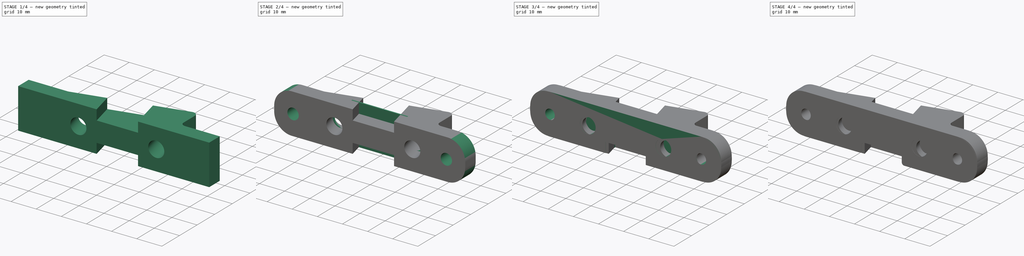
[diagram: build sequence overview — one tinted view per stage of 4, left to right]
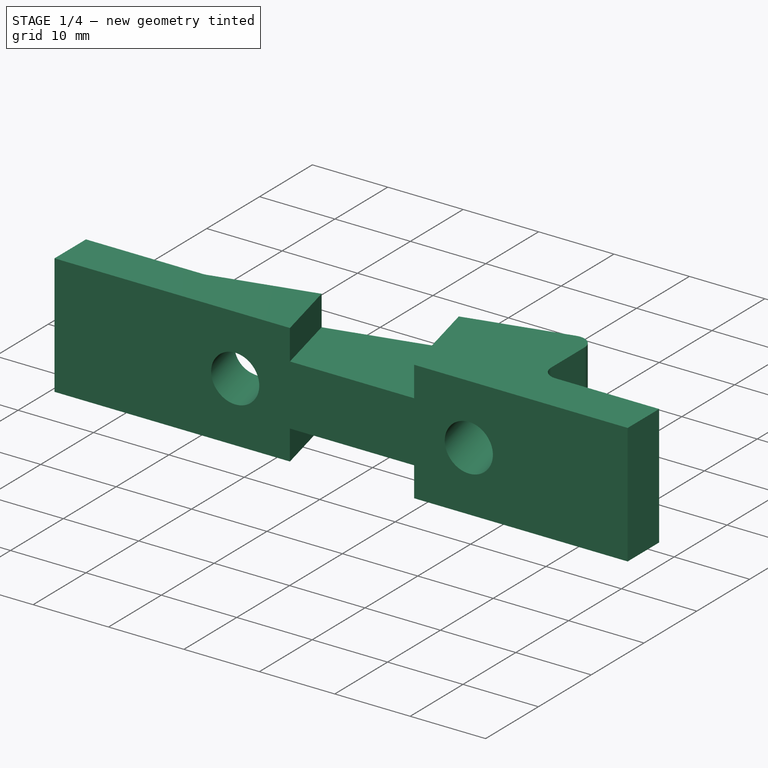
[diagram: stage 1 of 4 — iso view after this stage's code; geometry added in this stage tinted green]
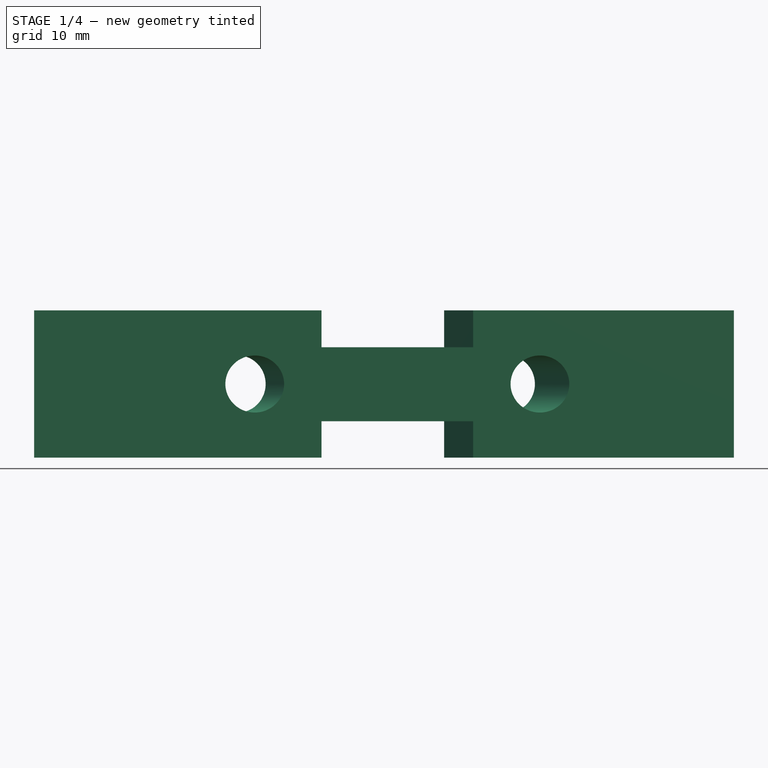
[diagram: stage 1 of 4 — front view after this stage's code; geometry added in this stage tinted green]
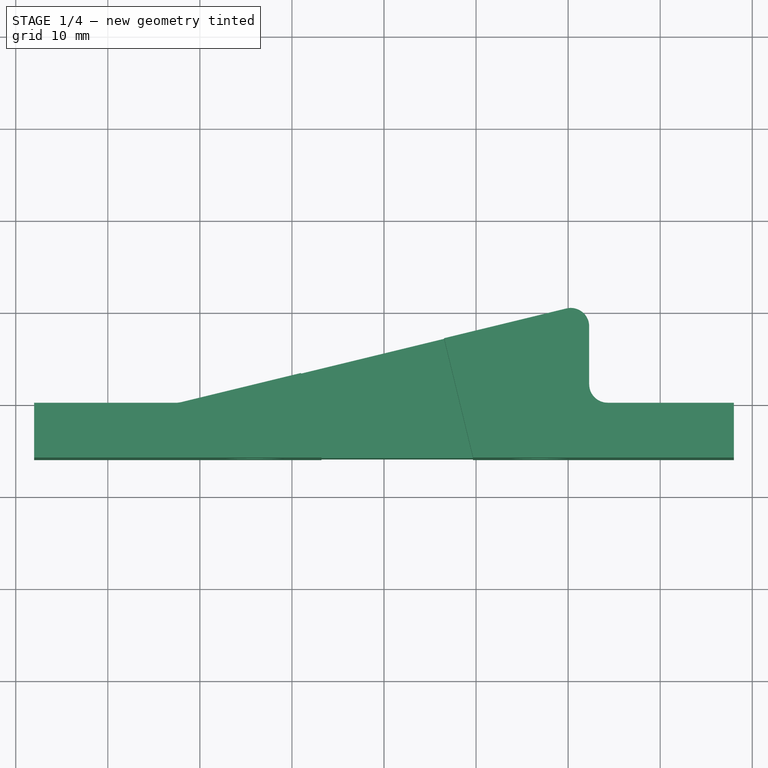
[diagram: stage 1 of 4 — top view after this stage's code; geometry added in this stage tinted green]
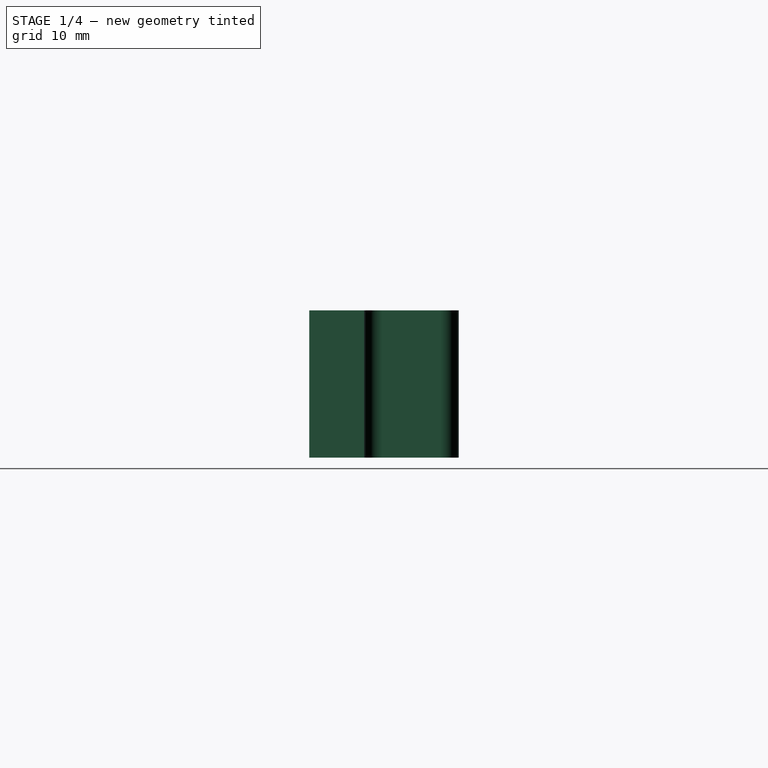
[diagram: stage 1 of 4 — right view after this stage's code; geometry added in this stage tinted green]
FCSTD DOCUMENT  (FreeCAD 1.0R38641 +468 (Git))
Label: ld2410_magnetholder
License: All rights reserved
LicenseURL: https://en.wikipedia.org/wiki/All_rights_reserved
objects: Sketcher::SketchObject×9, PartDesign::Pad×5, PartDesign::Body×4, PartDesign::Pocket×3, PartDesign::Fillet×3
note: 55 computed .brp shape members not serialized (recipe doc carries the construction recipe); baked Part::Feature solids carry a one-line shape summary decoded from their .brp

FEATURE [PartDesign::Body] Body002
  AllowCompound = false
  Group = -> [Sketch003,Pad002,Sketch004,Pad003]
  Origin = -> Origin002
  Tip = -> Pad003
FEATURE [Sketcher::SketchObject] Sketch006
  ArcFitTolerance = 1e-06
  AttachmentSupport = -> [XY_Plane003]
  FullyConstrained = false
  MakeInternals = false
  MapMode = 5
  sketch-geometry (7):
    g0: LineSegment StartX=-38 StartY=0 StartZ=0 EndX=-38 EndY=-5.9539 EndZ=0
    g1: LineSegment StartX=-38 StartY=-5.9539 StartZ=0 EndX=38 EndY=-5.9539 EndZ=0
    g2: LineSegment StartX=38 StartY=-5.9539 StartZ=0 EndX=38 EndY=0 EndZ=0
    g3: LineSegment StartX=22.2868 StartY=0 StartZ=0 EndX=22.2868 EndY=10.8406 EndZ=0
    g4: LineSegment StartX=22.2868 StartY=10.8406 StartZ=0 EndX=-22.2868 EndY=0 EndZ=0
    g5: LineSegment StartX=-38 StartY=0 StartZ=0 EndX=-22.2868 EndY=0 EndZ=0
    g6: LineSegment StartX=22.2868 StartY=0 StartZ=0 EndX=38 EndY=0 EndZ=0
  constraints (16):
    c: PointOnObject(g0,g-1)
    c: Vertical(g0)
    c: Coincident(g0,g1)
    c: Horizontal(g1)
    c: Coincident(g1,g2)
    c: Vertical(g2)
    c: Vertical(g3)
    c: Coincident(g3,g4)
    c: Coincident(g0,g5)
    c: Coincident(g5,g4)
    c: Horizontal(g5)
    c: Coincident(g3,g6)
    c: Coincident(g6,g2)
    c: Symmetric(g4,g3,g-1)
    c: Symmetric(g0,g2,g-1)
    c: DistanceX(g1,g1) = 76
FEATURE [PartDesign::Pad] Pad005
  Direction = (0,0,1)
  Length = 16
  Length2 = 10
  Midplane = true
  Profile = -> Sketch006
  ReferenceAxis = -> Sketch006 [N_Axis]
  Refine = true
  Suppressed = false
  Type = 0
FEATURE [Sketcher::SketchObject] Sketch007
  ArcFitTolerance = 1e-06
  AttachmentSupport = -> [Pad005]
  ExternalGeometry = -> [Pad005]
  FullyConstrained = false
  MakeInternals = false
  MapMode = 5
  Placement = pos=(-1.24465,5.11761,0) rot=(-0.084449,0.704581,0.704581;3.31009rad)
  sketch-geometry (11):
    g0: Circle CenterX=15.05 CenterY=0 CenterZ=0 NormalX=0 NormalY=0 NormalZ=1 AngleXU=0 Radius=3.1
    g1: Circle CenterX=-15.05 CenterY=0 CenterZ=0 NormalX=0 NormalY=0 NormalZ=1 AngleXU=0 Radius=3.1
    g2: LineSegment StartX=-8 StartY=-4.05 StartZ=0 EndX=8 EndY=-4.05 EndZ=0
    g3: LineSegment StartX=-8 StartY=-8 StartZ=0 EndX=-8 EndY=-4.05 EndZ=0
    g4: LineSegment StartX=8 StartY=-4.05 StartZ=0 EndX=8 EndY=-8 EndZ=0
    g5: LineSegment StartX=-8 StartY=-8 StartZ=0 EndX=8 EndY=-8 EndZ=0
    g6: LineSegment StartX=-8 StartY=3.98743 StartZ=0 EndX=8 EndY=3.98743 EndZ=0
    g7: LineSegment StartX=8 StartY=3.98743 StartZ=0 EndX=8 EndY=8 EndZ=0
    g8: LineSegment StartX=8 StartY=8 StartZ=0 EndX=-8 EndY=8 EndZ=0
    g9: LineSegment StartX=-8 StartY=8 StartZ=0 EndX=-8 EndY=3.98743 EndZ=0
    g10: GeomPoint [constr] X=-1e-16 Y=5.99372 Z=0
  constraints (27):
    c: PointOnObject(g0,g-1)
    c: Equal(g1,g0)
    c: Diameter(g0) = 6.2
    c: DistanceX(g1,g0) = 30.1
    c: Symmetric(g0,g1,g-1)
    c: DistanceX(g2,g2) = 16
    c: Symmetric(g2,g2,g-2)
    c: Coincident(g3,g2)
    c: Vertical(g3)
    c: Coincident(g2,g4)
    c: Vertical(g4)
    c: Horizontal(g3,g4)
    c: DistanceY(g4,g4) = 3.95
    c: Coincident(g3,g5)
    c: Coincident(g5,g4)
    c: Coincident(g6,g7)
    c: Coincident(g7,g8)
    c: Coincident(g8,g9)
    c: Coincident(g9,g6)
    c: Horizontal(g6)
    c: Horizontal(g8)
    c: Vertical(g7)
    c: Vertical(g9)
    c: Symmetric(g8,g6,g10)
    c: PointOnObject(g10,g-2)
    c: PointOnObject(g7,g-3)
    c: Equal(g2,g6)
FEATURE [PartDesign::Pocket] Pocket001
  BaseFeature = -> Pad005
  Direction = (0.236319,-0.971675,-2e-16)
  Length = 27
  Length2 = 5
  Profile = -> Sketch007
  ReferenceAxis = -> Sketch007 [N_Axis]
  Refine = true
  Suppressed = false
  Type = 1
FEATURE [PartDesign::Fillet] Fillet001
  Base = -> Pocket001 [Edge2,Edge1,Edge13]
  BaseFeature = -> Pocket001
  Radius = 2
  Refine = true
  SupportTransform = false
  Suppressed = false
  UseAllEdges = false
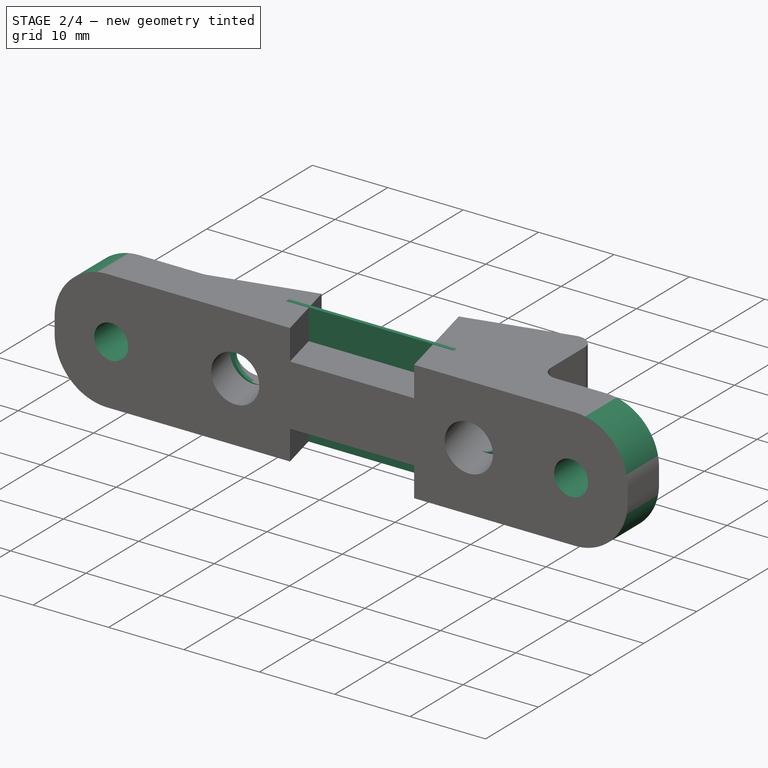
[diagram: stage 2 of 4 — iso view after this stage's code; geometry added in this stage tinted green]
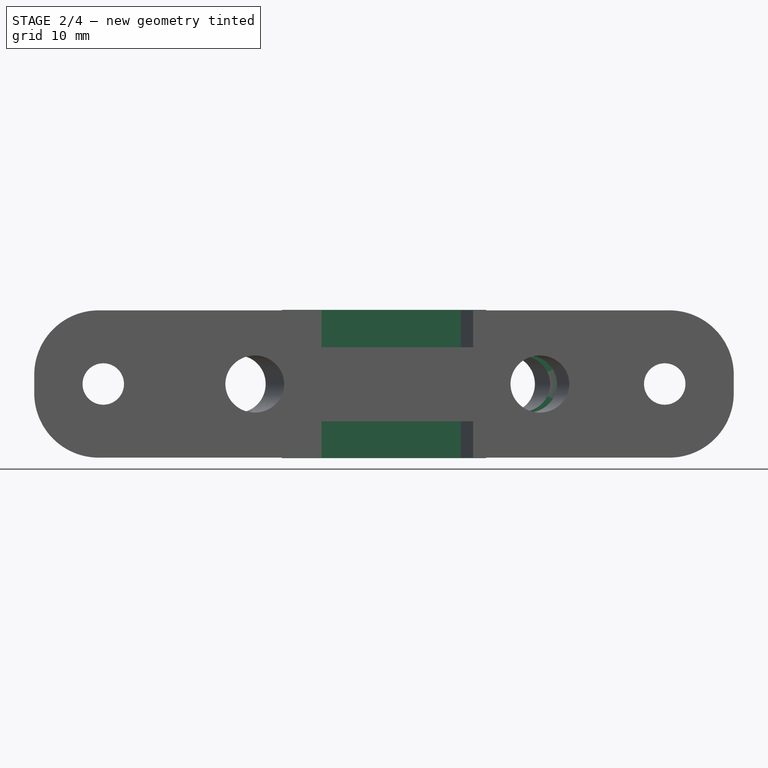
[diagram: stage 2 of 4 — front view after this stage's code; geometry added in this stage tinted green]
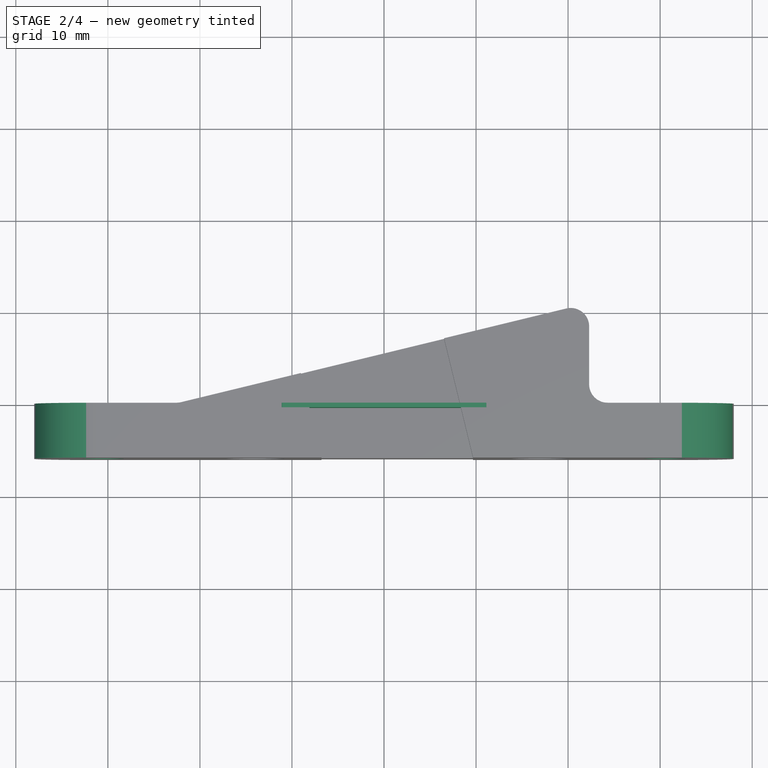
[diagram: stage 2 of 4 — top view after this stage's code; geometry added in this stage tinted green]
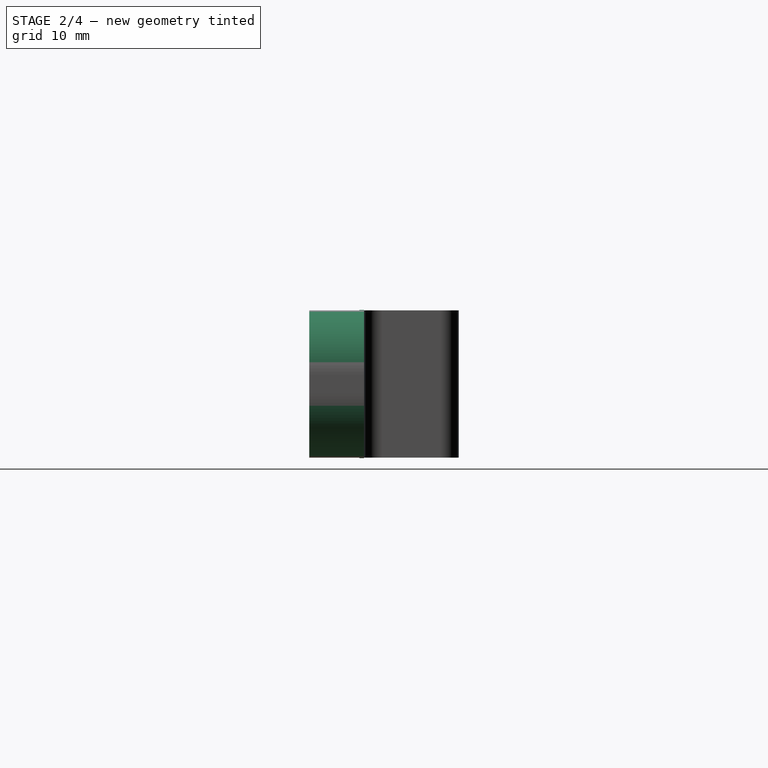
[diagram: stage 2 of 4 — right view after this stage's code; geometry added in this stage tinted green]
FEATURE [PartDesign::Body] Body001
  AllowCompound = false
  Group = -> [Sketch002,Pad001,Fillet]
  Origin = -> Origin001
  Tip = -> Fillet
FEATURE [Sketcher::SketchObject] Sketch003
  ArcFitTolerance = 1e-06
  AttachmentSupport = -> [XZ_Plane002]
  FullyConstrained = false
  MakeInternals = false
  MapMode = 5
  Placement = pos=(0,0,0) rot=(1,0,0;1.5708rad)
  sketch-geometry (18):
    g0: LineSegment [constr] StartX=11.05 StartY=-8.05 StartZ=0 EndX=11.05 EndY=8.05 EndZ=0
    g1: LineSegment StartX=11.05 StartY=8.05 StartZ=0 EndX=-11.05 EndY=8.05 EndZ=0
    g2: LineSegment [constr] StartX=-11.05 StartY=8.05 StartZ=0 EndX=-11.05 EndY=-8.05 EndZ=0
    g3: GeomPoint [constr] X=0 Y=0 Z=0
    g4: Circle CenterX=15.05 CenterY=0 CenterZ=0 NormalX=0 NormalY=0 NormalZ=1 AngleXU=0 Radius=3
    g5: Circle CenterX=-15.05 CenterY=0 CenterZ=0 NormalX=0 NormalY=0 NormalZ=1 AngleXU=0 Radius=3
    g6: LineSegment StartX=-11.05 StartY=8.05 StartZ=0 EndX=-15.05 EndY=5.5 EndZ=0
    g7: LineSegment [constr] StartX=-15.05 StartY=5.5 StartZ=0 EndX=-15.05 EndY=-5.5 EndZ=0
    g8: LineSegment StartX=-15.05 StartY=-5.5 StartZ=0 EndX=-11.05 EndY=-8.05 EndZ=0
    g9: LineSegment StartX=11.05 StartY=8.05 StartZ=0 EndX=15.05 EndY=5.5 EndZ=0
    g10: LineSegment [constr] StartX=15.05 StartY=5.5 StartZ=0 EndX=15.05 EndY=-5.5 EndZ=0
    g11: LineSegment StartX=15.05 StartY=-5.5 StartZ=0 EndX=11.05 EndY=-8.05 EndZ=0
    g12: ArcOfCircle CenterX=-15.05 CenterY=0 CenterZ=0 NormalX=0 NormalY=0 NormalZ=1 AngleXU=0 Radius=5.5 StartAngle=1.5708 EndAngle=4.71239
    g13: ArcOfCircle CenterX=15.05 CenterY=0 CenterZ=0 NormalX=0 NormalY=0 NormalZ=1 AngleXU=0 Radius=5.5 StartAngle=4.71239 EndAngle=7.85398
    g14: GeomPoint X=0 Y=8.05 Z=0
    g15: GeomPoint X=0 Y=-4.04914 Z=0
    g16: GeomPoint X=0 Y=2.00043 Z=0
    g17: LineSegment StartX=-11.05 StartY=-8.05 StartZ=0 EndX=11.05 EndY=-8.05 EndZ=0
  constraints (42):
    c: Coincident(g0,g1)
    c: Coincident(g1,g2)
    c: Horizontal(g1)
    c: Vertical(g0)
    c: Vertical(g2)
    c: Symmetric(g1,g2,g3)
    c: Distance(g0,g2) = 22.1
    c: Distance(g2,g1) = 16.1
    c: Coincident(g3,g-1)
    c: PointOnObject(g4,g-1)
    c: PointOnObject(g5,g-1)
    c: Equal(g5,g4)
    c: Diameter(g4) = 6
    c: Coincident(g1,g6)
    c: Coincident(g6,g7)
    c: Vertical(g7)
    c: Coincident(g7,g8)
    c: Coincident(g0,g9)
    c: Coincident(g9,g10)
    c: Coincident(g10,g11)
    c: Vertical(g10)
    c: PointOnObject(g4,g10)
    c: Horizontal(g10,g7)
    c: Coincident(g12,g5)
    c: Coincident(g12,g6)
    c: Coincident(g12,g7)
    c: Coincident(g13,g4)
    c: Coincident(g13,g9)
    c: Coincident(g13,g10)
    c: DistanceY(g10,g10) = 11
    c: Equal(g9,g6)
    c: PointOnObject(g5,g7)
    c: DistanceX(g6,g1) = 4
    c: PointOnObject(g14,g1)
    c: PointOnObject(g14,g-2)
    c: PointOnObject(g15,g-2)
    c: Symmetric(g15,g14,g16)
    c: Coincident(g8,g17)
    c: Coincident(g17,g11)
    c: Horizontal(g17)
    c: Coincident(g8,g2)
    c: Coincident(g11,g0)
FEATURE [PartDesign::Pad] Pad002
  Direction = (0,-1,2e-16)
  Length = 0.5
  Length2 = 10
  Placement = pos=(0,0,0) rot=(1,0,0;1.5708rad)
  Profile = -> Sketch003
  ReferenceAxis = -> Sketch003 [N_Axis]
  Refine = true
  Suppressed = false
  Type = 0
FEATURE [PartDesign::Fillet] Fillet002
  Base = -> Fillet001 [Edge56,Edge17,Edge7,Edge49]
  BaseFeature = -> Fillet001
  Radius = 7
  Refine = true
  SupportTransform = false
  Suppressed = false
  UseAllEdges = false
FEATURE [Sketcher::SketchObject] Sketch008
  ArcFitTolerance = 1e-06
  AttachmentSupport = -> [XZ_Plane003]
  ExternalGeometry = -> [Fillet002]
  FullyConstrained = true
  MakeInternals = false
  MapMode = 5
  Placement = pos=(0,0,0) rot=(1,0,0;1.5708rad)
  sketch-geometry (2):
    g0: Circle CenterX=-30.5 CenterY=0 CenterZ=0 NormalX=0 NormalY=0 NormalZ=1 AngleXU=0 Radius=2.25
    g1: Circle CenterX=30.5 CenterY=0 CenterZ=0 NormalX=0 NormalY=0 NormalZ=1 AngleXU=0 Radius=2.25
  constraints (5):
    c: PointOnObject(g1,g-1)
    c: Symmetric(g0,g1,g-1)
    c: Equal(g0,g1)
    c: Diameter(g1) = 4.5
    c: DistanceX(g1,g-3) = 7.5
FEATURE [PartDesign::Pocket] Pocket002
  BaseFeature = -> Fillet002
  Direction = (0,1,-2e-16)
  Length = 5
  Length2 = 5
  Midplane = true
  Profile = -> Sketch008
  ReferenceAxis = -> Sketch008 [N_Axis]
  Refine = true
  Suppressed = false
  Type = 1
FEATURE [Sketcher::SketchObject] Sketch009
  ArcFitTolerance = 1e-06
  AttachmentSupport = -> [XZ_Plane003]
  ExternalGeometry = -> [Pocket002]
  FullyConstrained = true
  MakeInternals = false
  MapMode = 5
  Placement = pos=(0,0,0) rot=(1,0,0;1.5708rad)
  constraints (2):
    c: DistanceX(g-3,g-5) = 46.8132
    c: Distance(g-5,g-5) = 16
FEATURE [PartDesign::Body] Body003
  AllowCompound = false
  Group = -> [Sketch006,Pad005,Sketch007,Pocket001,Fillet001,Fillet002,Sketch008,Pocket002,Sketch009]
  Origin = -> Origin003
  Tip = -> Pocket002
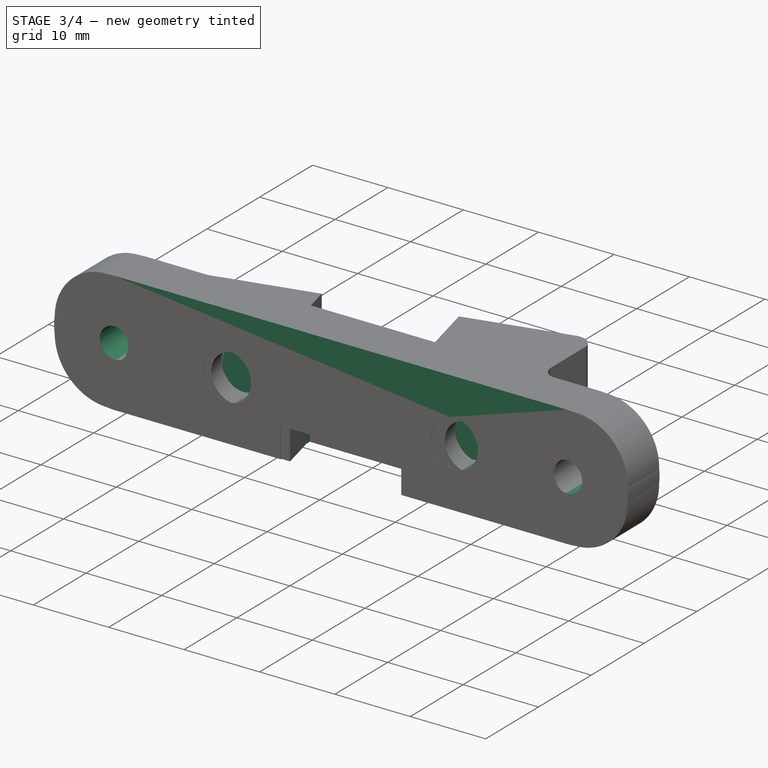
[diagram: stage 3 of 4 — iso view after this stage's code; geometry added in this stage tinted green]
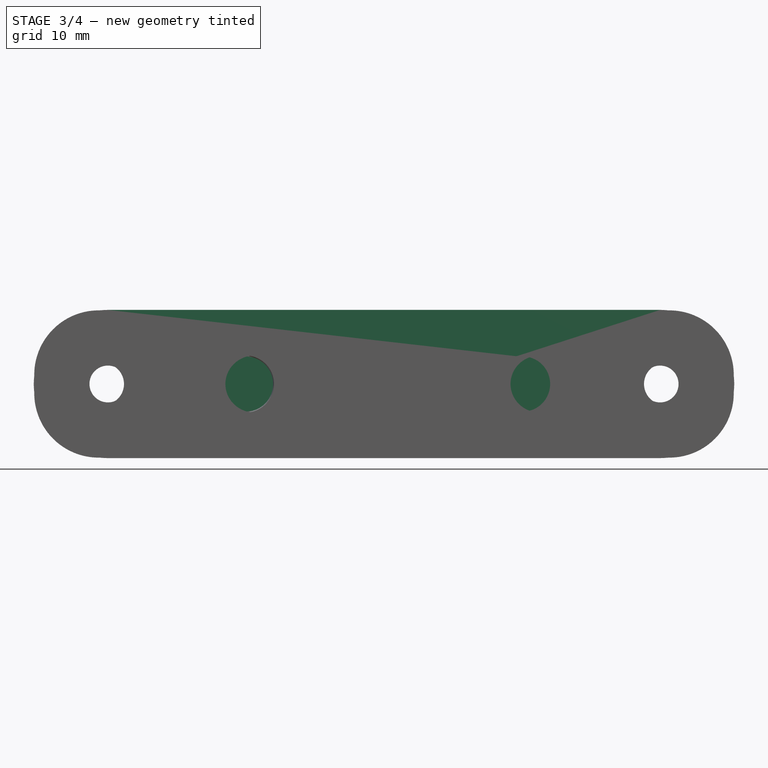
[diagram: stage 3 of 4 — front view after this stage's code; geometry added in this stage tinted green]
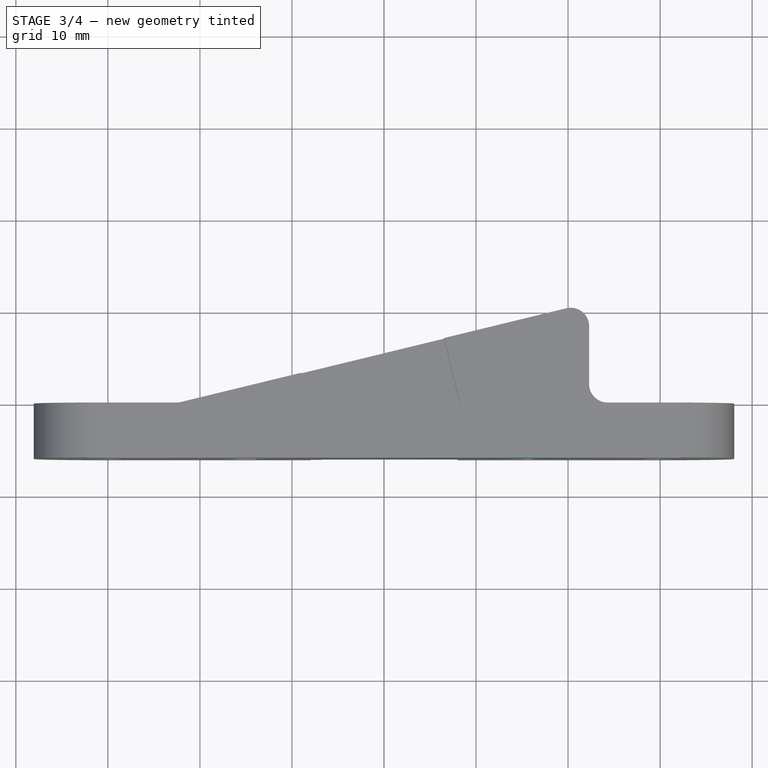
[diagram: stage 3 of 4 — top view after this stage's code; geometry added in this stage tinted green]
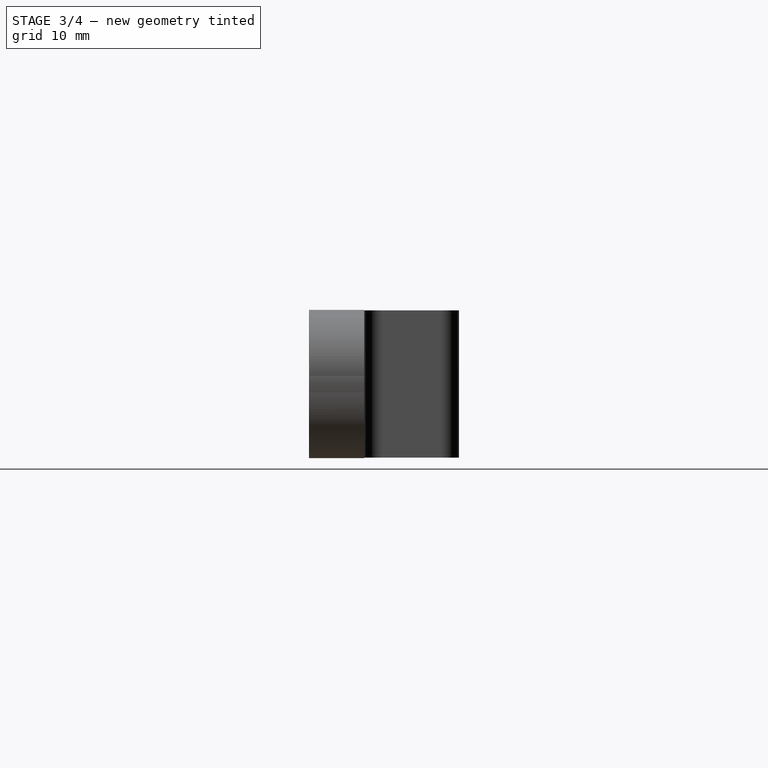
[diagram: stage 3 of 4 — right view after this stage's code; geometry added in this stage tinted green]
FEATURE [PartDesign::Body] Body
  AllowCompound = false
  Group = -> [Sketch,Pad,Sketch001,Pocket]
  Origin = -> Origin
  Tip = -> Pocket
FEATURE [Sketcher::SketchObject] Sketch002
  ArcFitTolerance = 1e-06
  AttachmentSupport = -> [XZ_Plane001]
  FullyConstrained = false
  MakeInternals = false
  MapMode = 5
  Placement = pos=(0,0,0) rot=(1,0,0;1.5708rad)
  sketch-geometry (14):
    g0: Circle CenterX=15.05 CenterY=0 CenterZ=0 NormalX=0 NormalY=0 NormalZ=1 AngleXU=0 Radius=3.1
    g1: Circle CenterX=-15.05 CenterY=0 CenterZ=0 NormalX=0 NormalY=0 NormalZ=1 AngleXU=0 Radius=3.1
    g2: GeomPoint X=0 Y=8.05 Z=0
    g3: ArcOfCircle CenterX=-30 CenterY=1e-16 CenterZ=0 NormalX=0 NormalY=0 NormalZ=1 AngleXU=0 Radius=8.05 StartAngle=1.5708 EndAngle=4.71239
    g4: ArcOfCircle CenterX=30 CenterY=-1e-16 CenterZ=0 NormalX=0 NormalY=0 NormalZ=1 AngleXU=0 Radius=8.05 StartAngle=4.71239 EndAngle=7.85398
    g5: LineSegment StartX=-30 StartY=8.05 StartZ=0 EndX=30 EndY=8.05 EndZ=0
    g6: LineSegment [constr] StartX=-30 StartY=-8.05 StartZ=0 EndX=30 EndY=-8.05 EndZ=0
    g7: Circle CenterX=-30 CenterY=1e-16 CenterZ=0 NormalX=0 NormalY=0 NormalZ=1 AngleXU=0 Radius=2
    g8: Circle CenterX=30 CenterY=-1e-16 CenterZ=0 NormalX=0 NormalY=0 NormalZ=1 AngleXU=0 Radius=2
    g9: LineSegment StartX=-8 StartY=-4.05 StartZ=0 EndX=8 EndY=-4.05 EndZ=0
    g10: LineSegment StartX=-30 StartY=-8.05 StartZ=0 EndX=-8 EndY=-8.05 EndZ=0
    g11: LineSegment StartX=-8 StartY=-8.05 StartZ=0 EndX=-8 EndY=-4.05 EndZ=0
    g12: LineSegment StartX=8 StartY=-4.05 StartZ=0 EndX=8 EndY=-8.05 EndZ=0
    g13: LineSegment StartX=8 StartY=-8.05 StartZ=0 EndX=30 EndY=-8.05 EndZ=0
  constraints (33):
    c: PointOnObject(g0,g-1)
    c: Equal(g1,g0)
    c: Diameter(g0) = 6.2
    c: PointOnObject(g2,g-2)
    c: DistanceX(g1,g0) = 30.1
    c: Tangent(g3,g5) = 1.5708
    c: Tangent(g3,g6) = -1.5708
    c: Tangent(g4,g5) = 1.5708
    c: Tangent(g4,g6) = -1.5708
    c: Equal(g3,g4)
    c: Horizontal(g6)
    c: DistanceX(g5,g5) = 60
    c: Symmetric(g3,g4,g-1)
    c: Symmetric(g0,g1,g-1)
    c: Coincident(g7,g3)
    c: Coincident(g8,g4)
    c: Equal(g8,g7)
    c: Diameter(g8) = 4
    c: DistanceY(g4,g4) = 16.1
    c: DistanceY(g4,g9) = 4
    c: DistanceX(g9,g9) = 16
    c: Symmetric(g9,g9,g-2)
    c: Tangent(g3,g10) = -1.5708
    c: Coincident(g10,g11)
    c: Coincident(g11,g9)
    c: Vertical(g11)
    c: Coincident(g9,g12)
    c: PointOnObject(g12,g6)
    c: Vertical(g12)
    c: Coincident(g12,g13)
    c: Coincident(g13,g4)
    c: Horizontal(g13)
    c: Tangent(g13,g4)
FEATURE [PartDesign::Pad] Pad001
  Direction = (0,-1,2e-16)
  Length = 6
  Length2 = 10
  Placement = pos=(0,0,0) rot=(1,0,0;1.5708rad)
  Profile = -> Sketch002
  ReferenceAxis = -> Sketch002 [N_Axis]
  Refine = true
  Suppressed = false
  Type = 0
FEATURE [Sketcher::SketchObject] Sketch004
  ArcFitTolerance = 1e-06
  AttachmentSupport = -> [XZ_Plane002]
  ExternalGeometry = -> [Pad002]
  FullyConstrained = true
  MakeInternals = false
  MapMode = 5
  Placement = pos=(0,0,0) rot=(1,0,0;1.5708rad)
  sketch-geometry (2):
    g0: Circle CenterX=-15.05 CenterY=0 CenterZ=0 NormalX=0 NormalY=0 NormalZ=1 AngleXU=0 Radius=3
    g1: Circle CenterX=15.05 CenterY=0 CenterZ=0 NormalX=0 NormalY=0 NormalZ=1 AngleXU=0 Radius=3
  constraints (4):
    c: Coincident(g0,g-3)
    c: Equal(g0,g-3)
    c: Coincident(g1,g-4)
    c: Equal(g1,g-4)
FEATURE [PartDesign::Pad] Pad003
  BaseFeature = -> Pad002
  Direction = (0,-1,2e-16)
  Length = 3
  Length2 = 10
  Placement = pos=(0,0,0) rot=(1,0,0;1.5708rad)
  Profile = -> Sketch004
  ReferenceAxis = -> Sketch004 [N_Axis]
  Refine = true
  Suppressed = false
  Type = 0
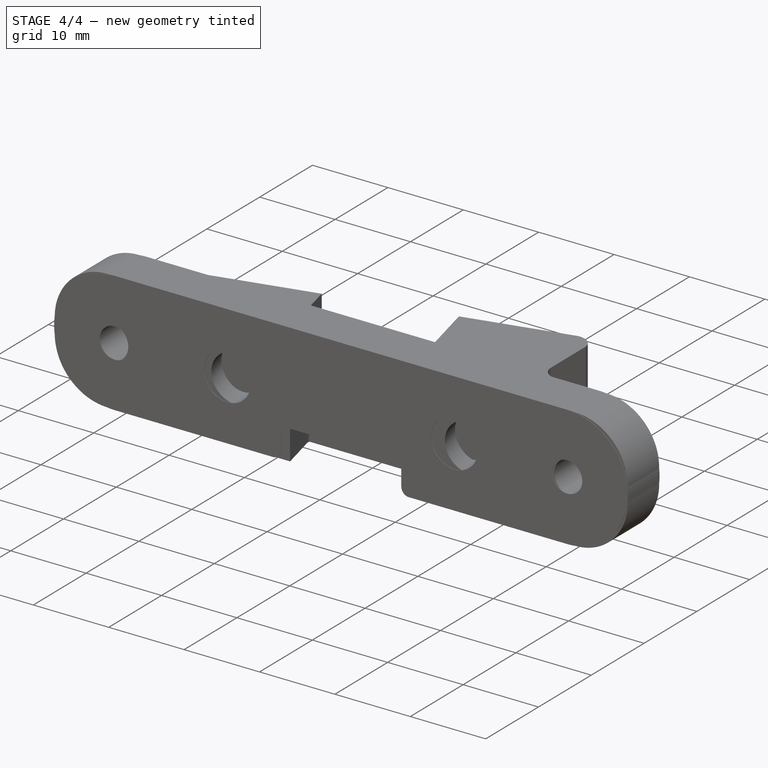
[diagram: stage 4 of 4 — iso view after this stage's code; geometry added in this stage tinted green]
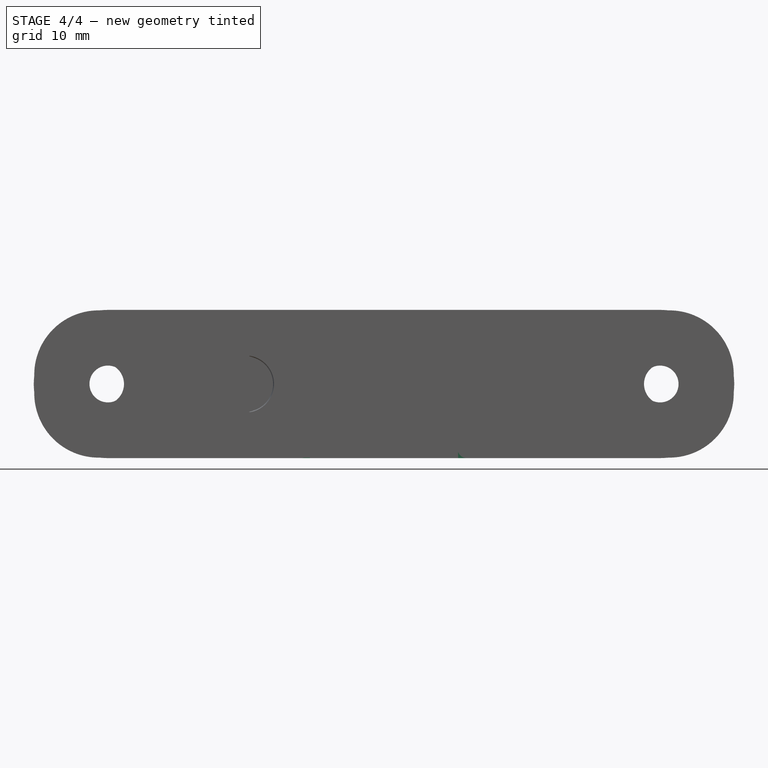
[diagram: stage 4 of 4 — front view after this stage's code; geometry added in this stage tinted green]
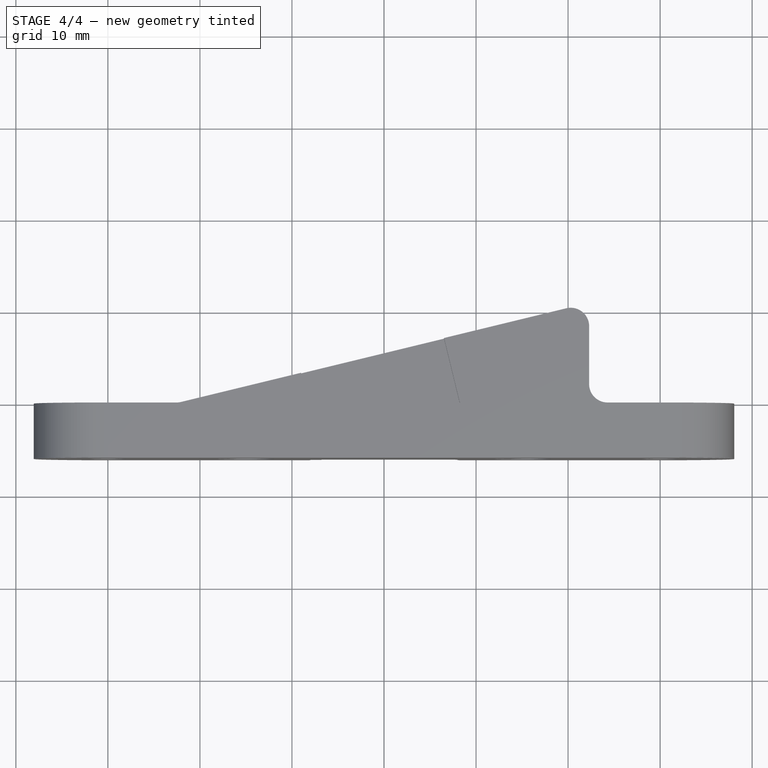
[diagram: stage 4 of 4 — top view after this stage's code; geometry added in this stage tinted green]
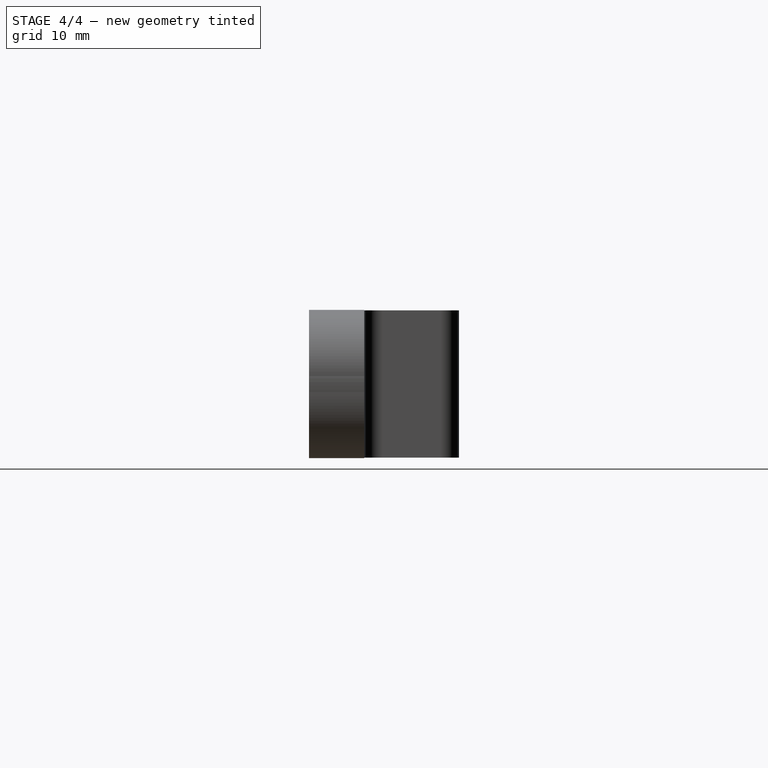
[diagram: stage 4 of 4 — right view after this stage's code; geometry added in this stage tinted green]
FEATURE [Sketcher::SketchObject] Sketch
  ArcFitTolerance = 1e-06
  AttachmentSupport = -> [XZ_Plane]
  FullyConstrained = true
  MakeInternals = false
  MapMode = 5
  Placement = pos=(0,0,0) rot=(1,0,0;1.5708rad)
  sketch-geometry (23):
    g0: LineSegment [constr] StartX=-11.05 StartY=-8.05 StartZ=0 EndX=11.05 EndY=-8.05 EndZ=0
    g1: LineSegment [constr] StartX=11.05 StartY=-8.05 StartZ=0 EndX=11.05 EndY=8.05 EndZ=0
    g2: LineSegment StartX=11.05 StartY=8.05 StartZ=0 EndX=-11.05 EndY=8.05 EndZ=0
    g3: LineSegment [constr] StartX=-11.05 StartY=8.05 StartZ=0 EndX=-11.05 EndY=-8.05 EndZ=0
    g4: GeomPoint [constr] X=0 Y=0 Z=0
    g5: LineSegment StartX=-11.05 StartY=-8.05 StartZ=0 EndX=-8.05 EndY=-8.05 EndZ=0
    g6: LineSegment StartX=-8.05 StartY=-8.05 StartZ=0 EndX=-8.05 EndY=-4.05 EndZ=0
    g7: LineSegment StartX=-8.05 StartY=-4.05 StartZ=0 EndX=8.05 EndY=-4.05 EndZ=0
    g8: LineSegment StartX=8.05 StartY=-4.05 StartZ=0 EndX=8.05 EndY=-8.05 EndZ=0
    g9: LineSegment StartX=8.05 StartY=-8.05 StartZ=0 EndX=11.05 EndY=-8.05 EndZ=0
    g10: Circle CenterX=15.05 CenterY=0 CenterZ=0 NormalX=0 NormalY=0 NormalZ=1 AngleXU=0 Radius=3.1
    g11: Circle CenterX=-15.05 CenterY=0 CenterZ=0 NormalX=0 NormalY=0 NormalZ=1 AngleXU=0 Radius=3.1
    g12: LineSegment StartX=-11.05 StartY=8.05 StartZ=0 EndX=-15.05 EndY=5.5 EndZ=0
    g13: LineSegment [constr] StartX=-15.05 StartY=5.5 StartZ=0 EndX=-15.05 EndY=-5.5 EndZ=0
    g14: LineSegment StartX=-15.05 StartY=-5.5 StartZ=0 EndX=-11.05 EndY=-8.05 EndZ=0
    g15: LineSegment StartX=11.05 StartY=8.05 StartZ=0 EndX=15.05 EndY=5.5 EndZ=0
    g16: LineSegment [constr] StartX=15.05 StartY=5.5 StartZ=0 EndX=15.05 EndY=-5.5 EndZ=0
    g17: LineSegment StartX=15.05 StartY=-5.5 StartZ=0 EndX=11.05 EndY=-8.05 EndZ=0
    g18: ArcOfCircle CenterX=-15.05 CenterY=0 CenterZ=0 NormalX=0 NormalY=0 NormalZ=1 AngleXU=0 Radius=5.5 StartAngle=1.5708 EndAngle=4.71239
    g19: ArcOfCircle CenterX=15.05 CenterY=0 CenterZ=0 NormalX=0 NormalY=0 NormalZ=1 AngleXU=0 Radius=5.5 StartAngle=4.71239 EndAngle=7.85398
    g20: GeomPoint X=0 Y=8.05 Z=0
    g21: GeomPoint X=0 Y=-4.05 Z=0
    g22: GeomPoint X=0 Y=2 Z=0
  constraints (57):
    c: Coincident(g0,g1)
    c: Coincident(g1,g2)
    c: Coincident(g2,g3)
    c: Coincident(g3,g0)
    c: Horizontal(g0)
    c: Horizontal(g2)
    c: Vertical(g1)
    c: Vertical(g3)
    c: Symmetric(g2,g0,g4)
    c: Distance(g1,g3) = 22.1
    c: Distance(g0,g2) = 16.1
    c: Coincident(g4,g-1)
    c: Coincident(g0,g5)
    c: PointOnObject(g5,g0)
    c: Coincident(g5,g6)
    c: Vertical(g6)
    c: Coincident(g6,g7)
    c: Horizontal(g7)
    c: Coincident(g7,g8)
    c: PointOnObject(g8,g0)
    c: Coincident(g8,g9)
    c: Coincident(g9,g0)
    c: Vertical(g8)
    c: Equal(g9,g5)
    c: DistanceX(g9,g9) = 3
    c: PointOnObject(g10,g-1)
    c: PointOnObject(g11,g-1)
    c: Equal(g11,g10)
    c: Diameter(g10) = 6.2
    c: Coincident(g2,g12)
    c: Coincident(g12,g13)
    c: Vertical(g13)
    c: Coincident(g13,g14)
    c: Coincident(g14,g0)
    c: Coincident(g1,g15)
    c: Coincident(g15,g16)
    c: Coincident(g16,g17)
    c: Coincident(g17,g0)
    c: Vertical(g16)
    c: PointOnObject(g10,g16)
    c: Horizontal(g16,g13)
    c: Coincident(g18,g11)
    c: Coincident(g18,g12)
    c: Coincident(g18,g13)
    c: Coincident(g19,g10)
    c: Coincident(g19,g15)
    c: Coincident(g19,g16)
    c: DistanceY(g16,g16) = 11
    c: Equal(g15,g12)
    c: PointOnObject(g11,g13)
    c: DistanceX(g12,g2) = 4
    c: Distance(g8,g8) = 4
    c: PointOnObject(g20,g2)
    c: PointOnObject(g21,g7)
    c: PointOnObject(g20,g-2)
    c: PointOnObject(g21,g-2)
    c: Symmetric(g21,g20,g22)
FEATURE [PartDesign::Pad] Pad
  Direction = (0,-1,2e-16)
  Length = 6
  Length2 = 10
  Placement = pos=(0,0,0) rot=(1,0,0;1.5708rad)
  Profile = -> Sketch
  ReferenceAxis = -> Sketch [N_Axis]
  Refine = true
  Suppressed = false
  Type = 0
FEATURE [Sketcher::SketchObject] Sketch001
  ArcFitTolerance = 1e-06
  AttachmentSupport = -> [Pad]
  ExternalGeometry = -> [Pad]
  FullyConstrained = false
  MakeInternals = false
  MapMode = 5
  Placement = pos=(0,-6,0) rot=(1,0,0;1.5708rad)
  sketch-geometry (5):
    g0: LineSegment StartX=-11.05 StartY=-8.05 StartZ=0 EndX=11.05 EndY=-8.05 EndZ=0
    g1: LineSegment StartX=11.05 StartY=-8.05 StartZ=0 EndX=11.05 EndY=8.05 EndZ=0
    g2: LineSegment StartX=11.05 StartY=8.05 StartZ=0 EndX=-11.05 EndY=8.05 EndZ=0
    g3: LineSegment StartX=-11.05 StartY=8.05 StartZ=0 EndX=-11.05 EndY=-8.05 EndZ=0
    g4: GeomPoint [constr] X=0 Y=0 Z=0
  constraints (10):
    c: Coincident(g0,g1)
    c: Coincident(g1,g2)
    c: Coincident(g2,g3)
    c: Coincident(g3,g0)
    c: Horizontal(g0)
    c: Horizontal(g2)
    c: Vertical(g1)
    c: Vertical(g3)
    c: Coincident(g4,g-1)
    c: Coincident(g1,g-3)
FEATURE [PartDesign::Pocket] Pocket
  BaseFeature = -> Pad
  Direction = (0,1,-2e-16)
  Length = 4
  Length2 = 5
  Placement = pos=(0,0,0) rot=(1,0,0;1.5708rad)
  Profile = -> Sketch001
  ReferenceAxis = -> Sketch001 [N_Axis]
  Refine = true
  Suppressed = false
  Type = 0
FEATURE [PartDesign::Fillet] Fillet
  Base = -> Pad001 [Edge8,Edge11,Edge5,Edge14]
  BaseFeature = -> Pad001
  Placement = pos=(0,0,0) rot=(1,0,0;1.5708rad)
  Radius = 1
  Refine = true
  SupportTransform = false
  Suppressed = false
  UseAllEdges = false
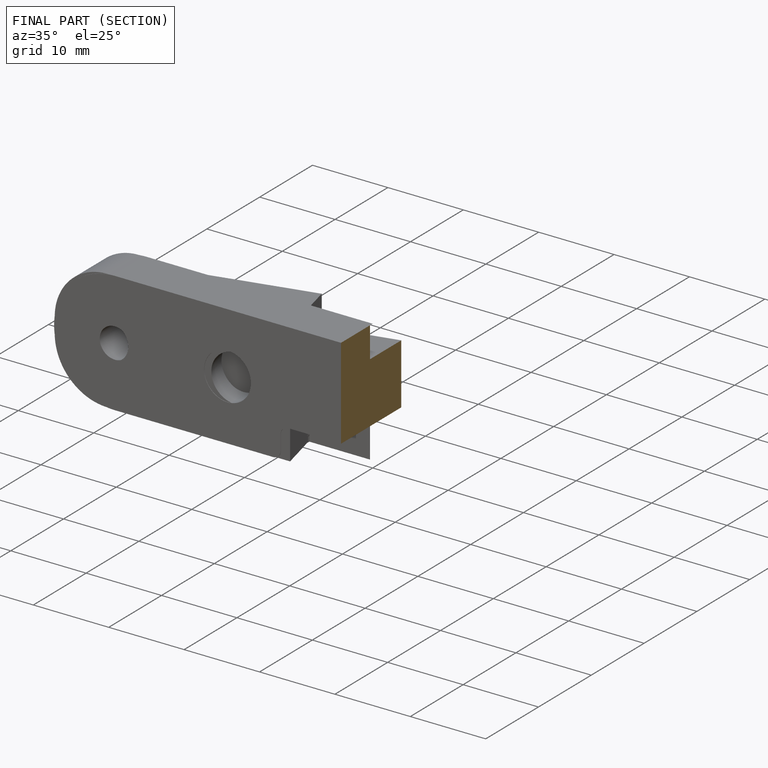
[diagram: finished part — half-section view (interior)]
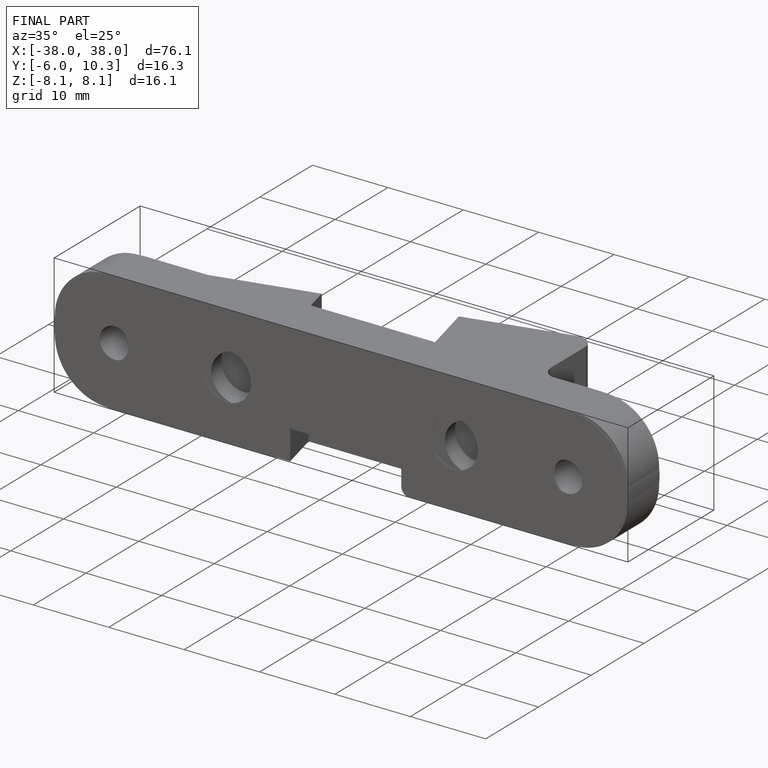
[diagram: finished part — iso view with bounding-box wireframe]
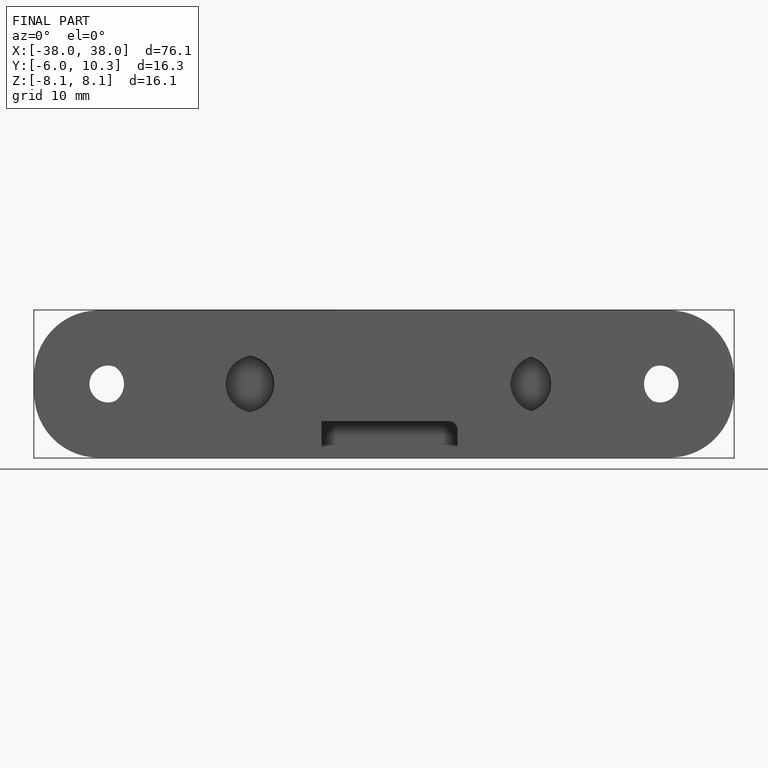
[diagram: finished part — front view with bounding-box wireframe]
